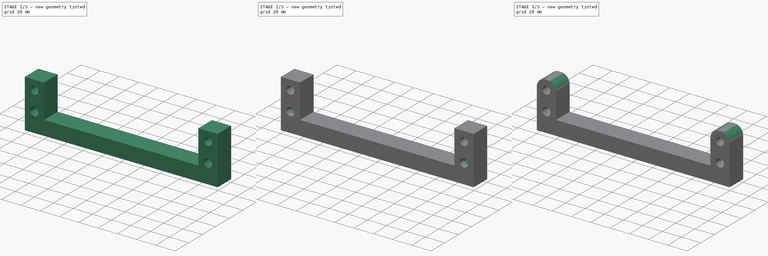
[diagram: build sequence overview — one tinted view per stage of 3, left to right]
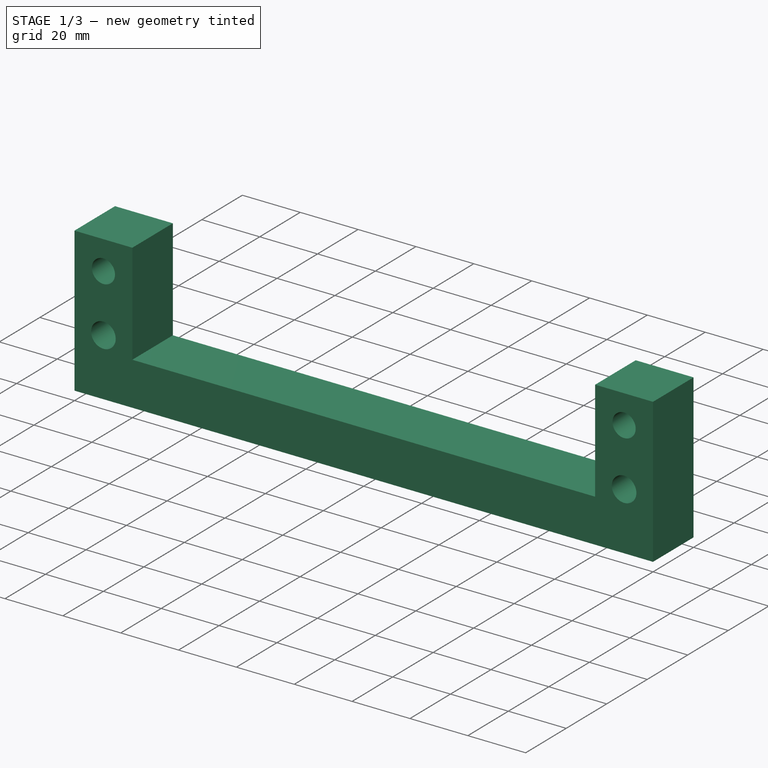
[diagram: stage 1 of 3 — iso view after this stage's code; geometry added in this stage tinted green]
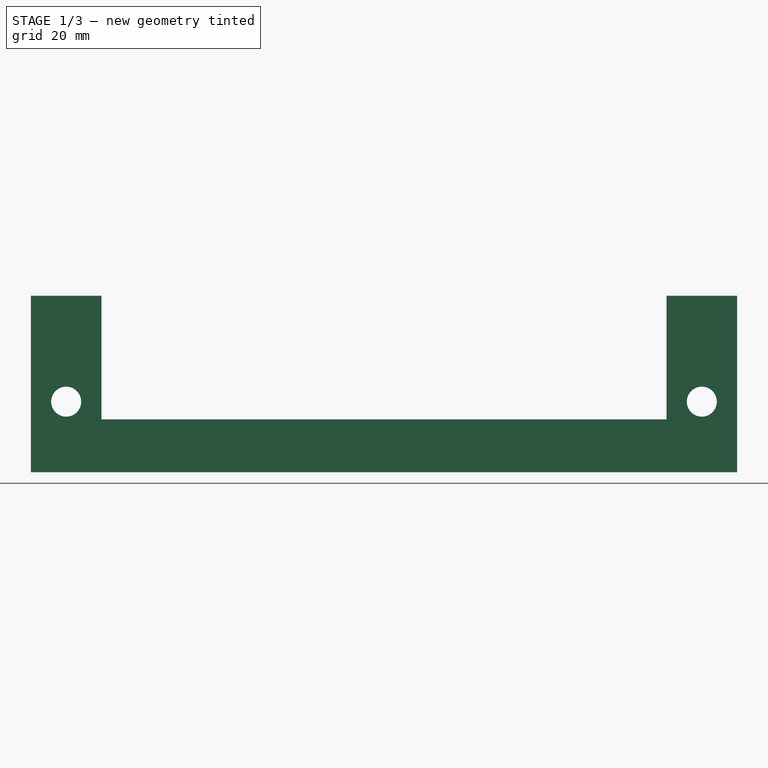
[diagram: stage 1 of 3 — front view after this stage's code; geometry added in this stage tinted green]
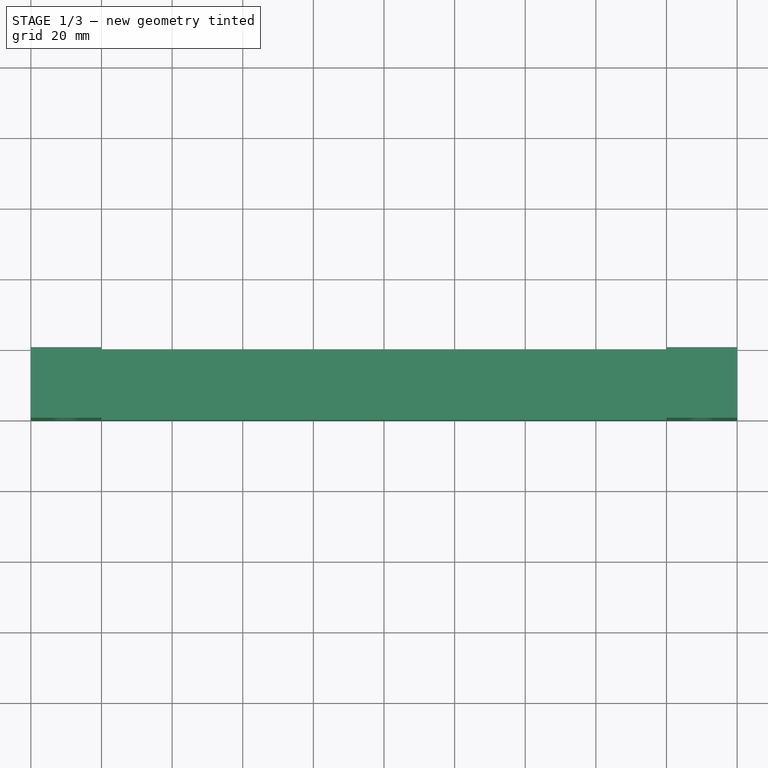
[diagram: stage 1 of 3 — top view after this stage's code; geometry added in this stage tinted green]
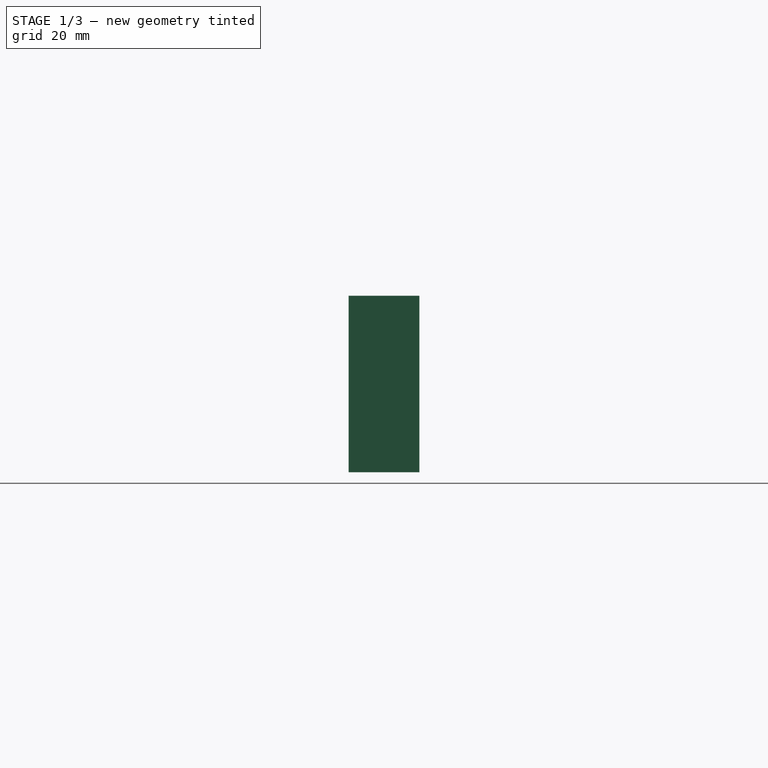
[diagram: stage 1 of 3 — right view after this stage's code; geometry added in this stage tinted green]
FCSTD DOCUMENT  (FreeCAD 2023.521R14555 (Git shallow))
Label: Y_Front_Base
License: All rights reserved
objects: Part::SubShapeBinder×6, PartDesign::CoordinateSystem×5, Sketcher::SketchObject×4, PartDesign::Pocket×3, PartDesign::Pad×1, PartDesign::Fillet×1, PartDesign::Body×1, App::Part×1
note: 35 computed .brp shape members not serialized (recipe doc carries the construction recipe); baked Part::Feature solids carry a one-line shape summary decoded from their .brp

FEATURE [Sketcher::SketchObject] Sketch
  ArcFitTolerance = 1e-06
  AttachmentSupport = -> [XZ_Plane]
  ExternalBSplineMaxDegree = 5
  ExternalBSplineTolerance = 0.0001
  FullyConstrained = true
  InternalTolerance = 1e-06
  InvalidShape = false
  MakeInternals = false
  MapMode = 5
  Placement = pos=(0,0,0) rot=(1,0,0;1.5708rad)
  Support = -> [XZ_Plane]
  TreeRank = 11
  ValidateShape = false
  sketch-geometry (12):
    g0: Circle CenterX=-90 CenterY=20 CenterZ=0 NormalX=0 NormalY=0 NormalZ=1 AngleXU=0 Radius=4.25
    g1: Circle CenterX=90 CenterY=20 CenterZ=0 NormalX=0 NormalY=0 NormalZ=1 AngleXU=0 Radius=4.25
    g2: LineSegment StartX=-100 StartY=0 StartZ=0 EndX=-100 EndY=50 EndZ=0
    g3: LineSegment StartX=100 StartY=50 StartZ=0 EndX=100 EndY=0 EndZ=0
    g4: LineSegment StartX=100 StartY=0 StartZ=0 EndX=-100 EndY=0 EndZ=0
    g5: GeomPoint [constr] X=0 Y=25 Z=0
    g6: LineSegment StartX=-100 StartY=50 StartZ=0 EndX=-80 EndY=50 EndZ=0
    g7: LineSegment StartX=-80 StartY=50 StartZ=0 EndX=-80 EndY=15 EndZ=0
    g8: LineSegment StartX=-80 StartY=15 StartZ=0 EndX=80 EndY=15 EndZ=0
    g9: LineSegment StartX=80 StartY=15 StartZ=0 EndX=80 EndY=50 EndZ=0
    g10: LineSegment StartX=80 StartY=50 StartZ=0 EndX=100 EndY=50 EndZ=0
    g11: GeomPoint [constr] X=-90 Y=50 Z=0
  constraints (30):
    c: Coincident(g3,g4)
    c: Coincident(g4,g2)
    c: Horizontal(g4)
    c: Vertical(g2)
    c: Vertical(g3)
    c: Symmetric(g3,g2,g5)
    c: Symmetric(g1,g0,g-2)
    c: PointOnObject(g-1,g4)
    c: Vertical(g5,g-1)
    c: DistanceX(g0,g1) = 180
    c: DistanceX(g4,g4) = 200
    c: DistanceY(g-1,g0) = 20
    c: DistanceY(g2,g2) = 50
    c: Equal(g0,g1)
    c: Diameter(g0) = 8.5
    c: Coincident(g6,g2)
    c: Horizontal(g6)
    c: Vertical(g7)
    c: Coincident(g8,g7)
    c: Coincident(g9,g8)
    c: Vertical(g9)
    c: Coincident(g10,g9)
    c: Coincident(g10,g3)
    c: Horizontal(g10)
    c: Horizontal(g9,g6)
    c: Coincident(g6,g7)
    c: Symmetric(g7,g8,g-2)
    c: Symmetric(g2,g6,g11)
    c: Vertical(g11,g0)
    c: DistanceY(g2,g7) = 15
FEATURE [PartDesign::Pad] Pad
  AddSubType = 0
  AlongSketchNormal = false
  AutoTaperInnerAngle = true
  CheckUpToFaceLimits = true
  ClaimChildren = false
  Direction = (0,-1,2e-16)
  Fit = 0
  FitJoin = 0
  InnerFit = 0
  InnerFitJoin = 0
  InvalidShape = false
  Length = 20
  Length2 = 10
  Linearize = true
  NewSolid = false
  Profile = -> Sketch
  ReferenceAxis = -> Sketch [N_Axis]
  Suppress = false
  TaperInnerAngle = 0
  TaperInnerAngleRev = 0
  TreeRank = 12
  Type = 0
  ValidateShape = true
  _ProfileBasedVersion = 1
FEATURE [Sketcher::SketchObject] Sketch001
  ArcFitTolerance = 1e-06
  AttachmentSupport = -> [Pad]
  ExternalBSplineMaxDegree = 5
  ExternalBSplineTolerance = 0.0001
  ExternalGeometry = -> [Pad]
  FullyConstrained = true
  InternalTolerance = 1e-06
  InvalidShape = false
  MakeInternals = false
  MapMode = 5
  Placement = pos=(0,-20,4.4e-15) rot=(1,0,0;1.5708rad)
  Support = -> [Pad]
  TreeRank = 13
  ValidateShape = false
  sketch-geometry (2):
    g0: Circle CenterX=-90 CenterY=40 CenterZ=0 NormalX=0 NormalY=0 NormalZ=1 AngleXU=0 Radius=4
    g1: Circle CenterX=90 CenterY=40 CenterZ=0 NormalX=0 NormalY=0 NormalZ=1 AngleXU=0 Radius=4
  constraints (5):
    c: Equal(g1,g0)
    c: Vertical(g0,g-3)
    c: Diameter(g0) = 8
    c: Symmetric(g0,g1,g-2)
    c: DistanceY(g-1,g0) = 40
FEATURE [PartDesign::Pocket] Pocket
  AddSubType = 1
  AlongSketchNormal = false
  AutoTaperInnerAngle = true
  BaseFeature = -> Pad
  CheckUpToFaceLimits = true
  ClaimChildren = false
  Direction = (0,1,-2e-16)
  Fit = 0
  FitJoin = 0
  InnerFit = 0
  InnerFitJoin = 0
  InvalidShape = false
  Length = 0
  Length2 = 10
  Linearize = true
  NewSolid = false
  Offset = 5
  Profile = -> Sketch001
  ReferenceAxis = -> Sketch001 [N_Axis]
  Suppress = false
  TaperInnerAngle = 0
  TaperInnerAngleRev = 0
  TreeRank = 14
  Type = 3
  UpToFace = -> Pad [Face11]
  ValidateShape = true
  _ProfileBasedVersion = 1
  _Version = 1
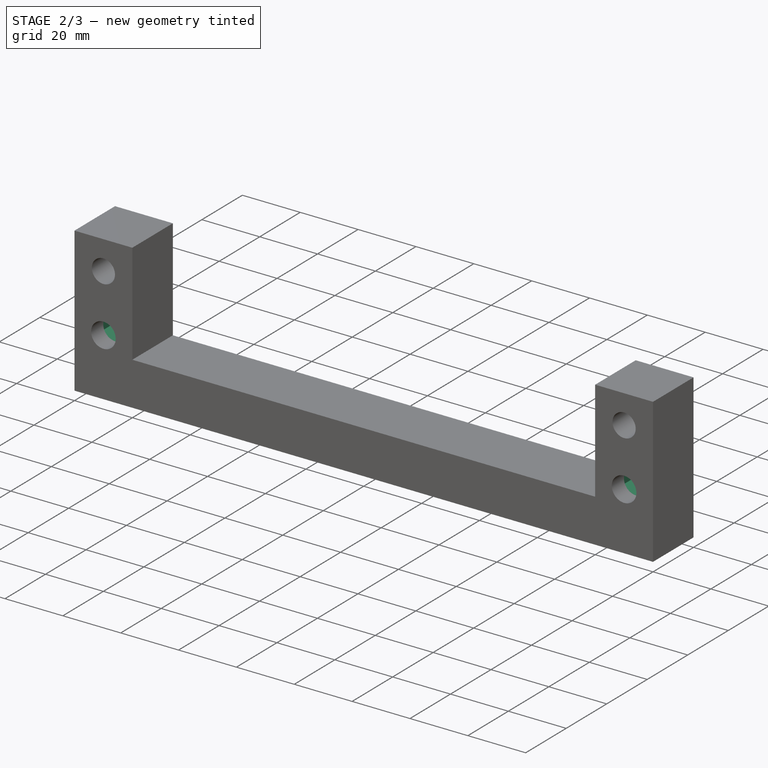
[diagram: stage 2 of 3 — iso view after this stage's code; geometry added in this stage tinted green]
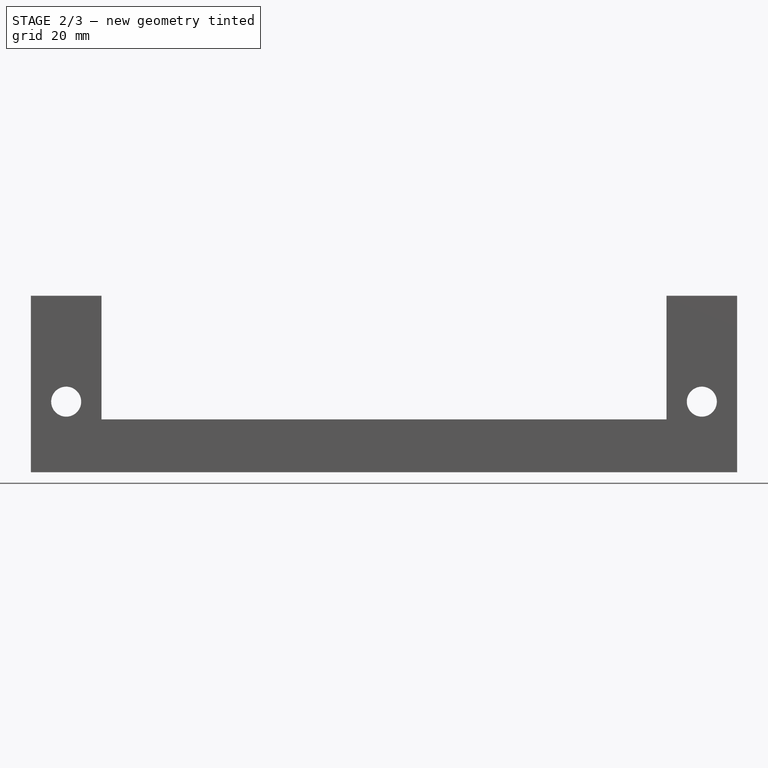
[diagram: stage 2 of 3 — front view after this stage's code; geometry added in this stage tinted green]
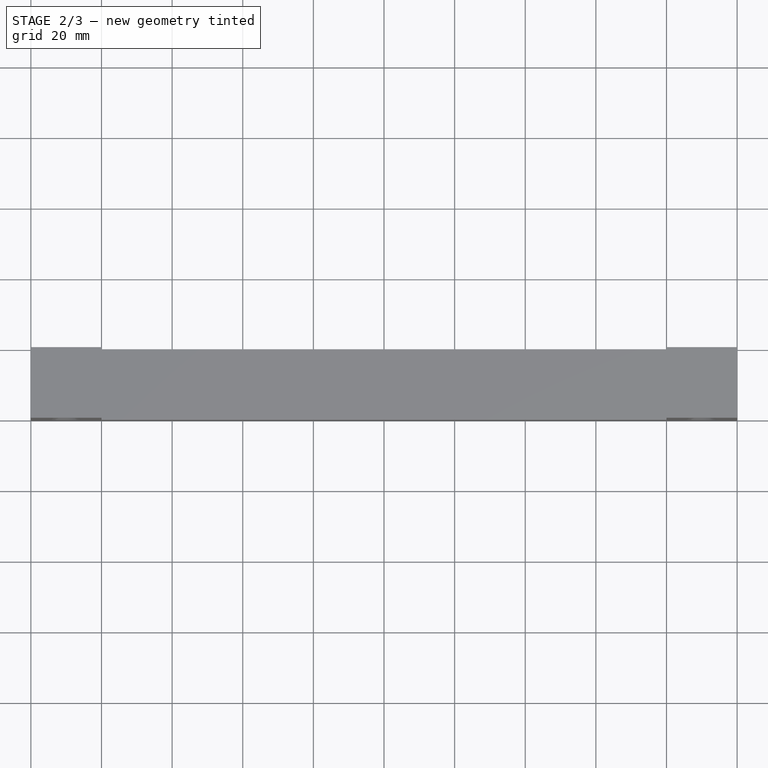
[diagram: stage 2 of 3 — top view after this stage's code; geometry added in this stage tinted green]
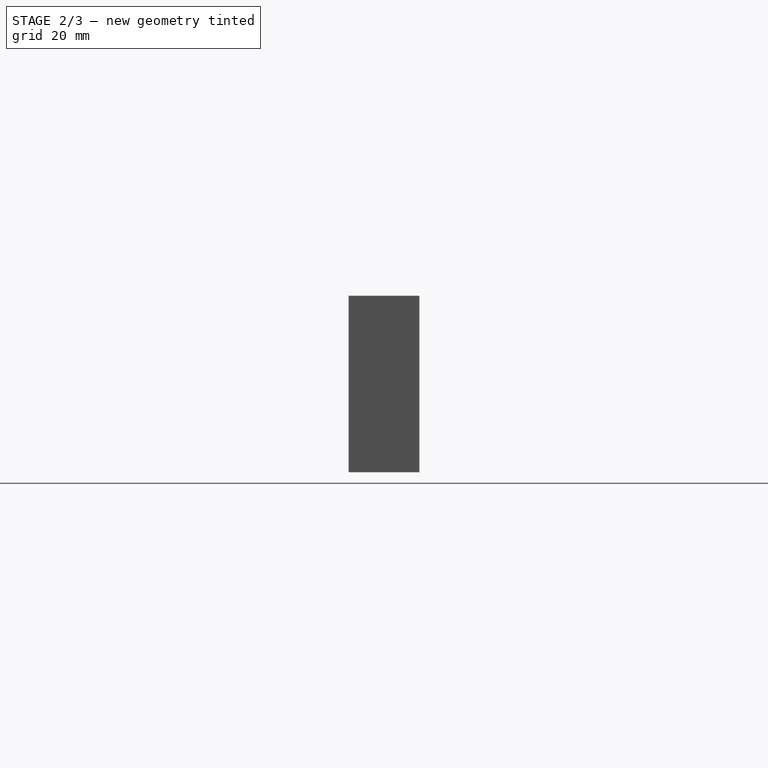
[diagram: stage 2 of 3 — right view after this stage's code; geometry added in this stage tinted green]
FEATURE [Sketcher::SketchObject] Sketch002
  ArcFitTolerance = 1e-06
  AttachmentSupport = -> [Pocket]
  ExternalBSplineMaxDegree = 5
  ExternalBSplineTolerance = 0.0001
  ExternalGeometry = -> [Pocket]
  FullyConstrained = true
  InternalTolerance = 1e-06
  InvalidShape = false
  MakeInternals = false
  MapMode = 5
  Placement = pos=(0,0,0) rot=(0,0.707107,0.707107;3.14159rad)
  Support = -> [Pocket]
  TreeRank = 15
  ValidateShape = false
  sketch-geometry (14):
    g0: LineSegment StartX=-83 StartY=24.0415 StartZ=0 EndX=-90 EndY=28.0829 EndZ=0
    g1: LineSegment StartX=-90 StartY=28.0829 StartZ=0 EndX=-97 EndY=24.0415 EndZ=0
    g2: LineSegment StartX=-97 StartY=24.0415 StartZ=0 EndX=-97 EndY=15.9585 EndZ=0
    g3: LineSegment StartX=-97 StartY=15.9585 StartZ=0 EndX=-90 EndY=11.9171 EndZ=0
    g4: LineSegment StartX=-90 StartY=11.9171 StartZ=0 EndX=-83 EndY=15.9585 EndZ=0
    g5: LineSegment StartX=-83 StartY=15.9585 StartZ=0 EndX=-83 EndY=24.0415 EndZ=0
    g6: Circle [constr] CenterX=-90 CenterY=20 CenterZ=0 NormalX=0 NormalY=0 NormalZ=1 AngleXU=0 Radius=8.0829
    g7: LineSegment StartX=83 StartY=24.0415 StartZ=0 EndX=83 EndY=15.9585 EndZ=0
    g8: LineSegment StartX=83 StartY=15.9585 StartZ=0 EndX=90 EndY=11.9171 EndZ=0
    g9: LineSegment StartX=90 StartY=11.9171 StartZ=0 EndX=97 EndY=15.9585 EndZ=0
    g10: LineSegment StartX=97 StartY=15.9585 StartZ=0 EndX=97 EndY=24.0415 EndZ=0
    g11: LineSegment StartX=97 StartY=24.0415 StartZ=0 EndX=90 EndY=28.0829 EndZ=0
    g12: LineSegment StartX=90 StartY=28.0829 StartZ=0 EndX=83 EndY=24.0415 EndZ=0
    g13: Circle [constr] CenterX=90 CenterY=20 CenterZ=0 NormalX=0 NormalY=0 NormalZ=1 AngleXU=0 Radius=8.0829
  constraints (32):
    c: Coincident(g0,g1)
    c: Coincident(g1,g2)
    c: Coincident(g2,g3)
    c: Coincident(g3,g4)
    c: Coincident(g4,g5)
    c: Coincident(g5,g0)
    c: Equal(g0, g1-g5) x5
    c: PointOnObject(g0,g6)
    c: PointOnObject(g1,g6)
    c: PointOnObject(g2,g6)
    c: PointOnObject(g3,g6)
    c: PointOnObject(g4,g6)
    c: PointOnObject(g5,g6)
    c: Coincident(g6,g-3)
    c: Coincident(g7,g8)
    c: Coincident(g8,g9)
    c: Coincident(g9,g10)
    c: Coincident(g10,g11)
    c: Coincident(g11,g12)
    c: Coincident(g12,g7)
    c: Equal(g7, g8-g12) x5
    c: PointOnObject(g7,g13)
    c: PointOnObject(g8,g13)
    c: PointOnObject(g9,g13)
    c: PointOnObject(g10,g13)
    c: PointOnObject(g11,g13)
    c: PointOnObject(g12,g13)
    c: Symmetric(g-3,g13,g-2)
    c: Equal(g5,g10)
    c: DistanceX(g1,g0) = 14
    c: Vertical(g5)
    c: Vertical(g10)
FEATURE [PartDesign::Pocket] Pocket001
  AddSubType = 1
  AlongSketchNormal = false
  AutoTaperInnerAngle = true
  BaseFeature = -> Pocket
  CheckUpToFaceLimits = true
  ClaimChildren = false
  Direction = (0,-1,2e-16)
  Fit = 0
  FitJoin = 0
  InnerFit = 0
  InnerFitJoin = 0
  InvalidShape = false
  Length = 14
  Length2 = 10
  Linearize = true
  NewSolid = false
  Profile = -> Sketch002
  ReferenceAxis = -> Sketch002 [N_Axis]
  Suppress = false
  TaperInnerAngle = 0
  TaperInnerAngleRev = 0
  TreeRank = 16
  Type = 0
  ValidateShape = true
  _ProfileBasedVersion = 1
  _Version = 1
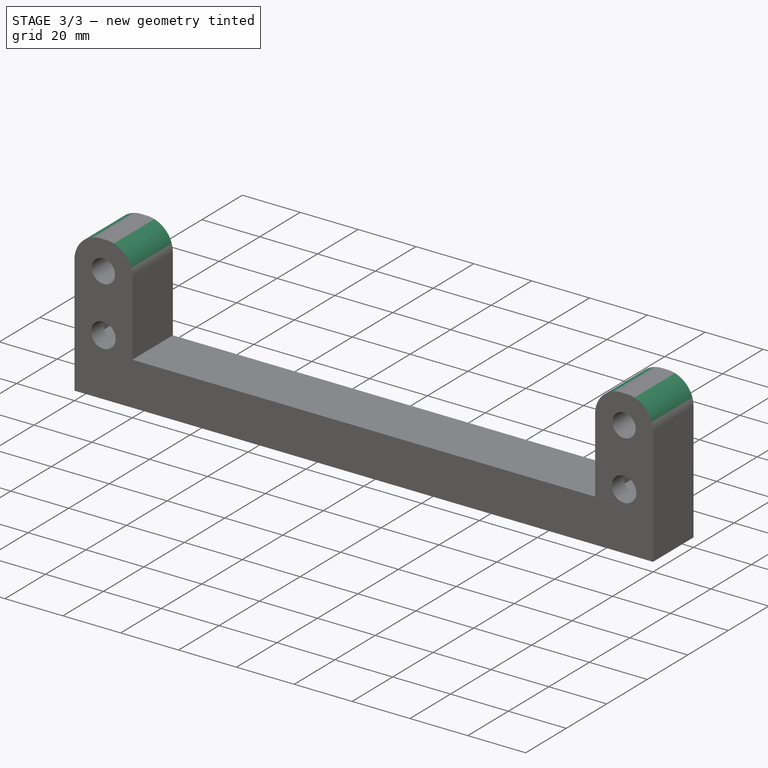
[diagram: stage 3 of 3 — iso view after this stage's code; geometry added in this stage tinted green]
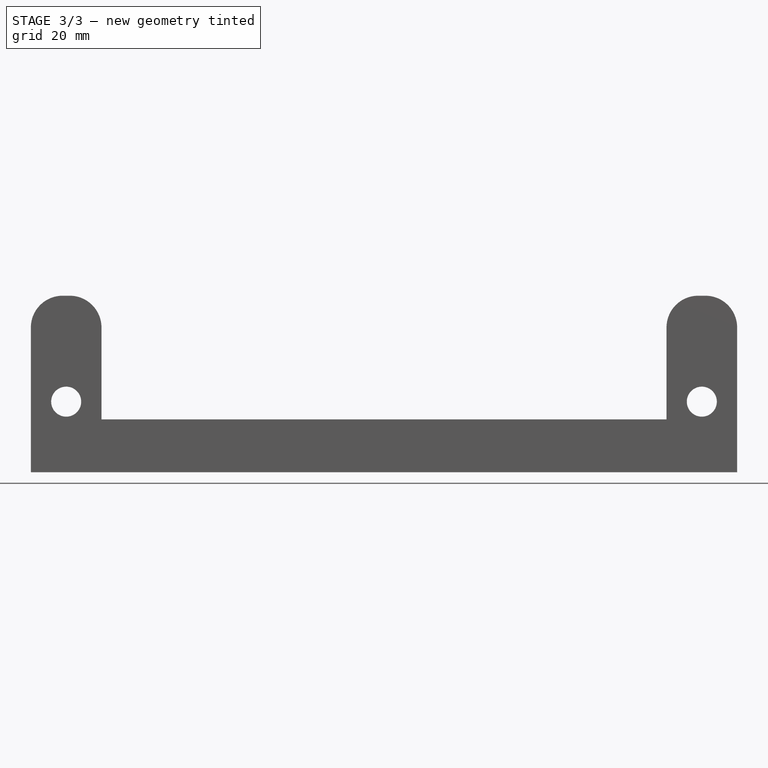
[diagram: stage 3 of 3 — front view after this stage's code; geometry added in this stage tinted green]
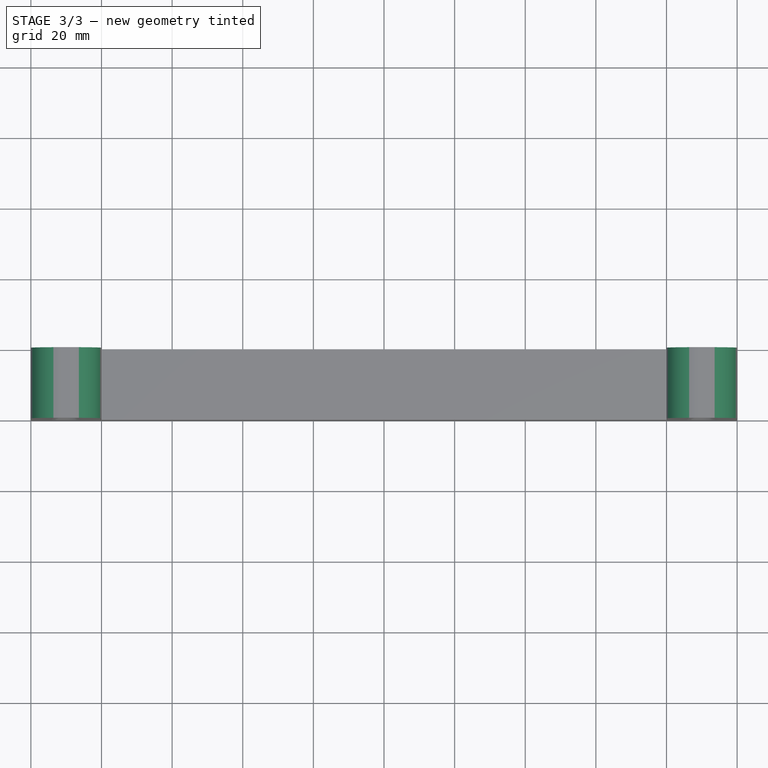
[diagram: stage 3 of 3 — top view after this stage's code; geometry added in this stage tinted green]
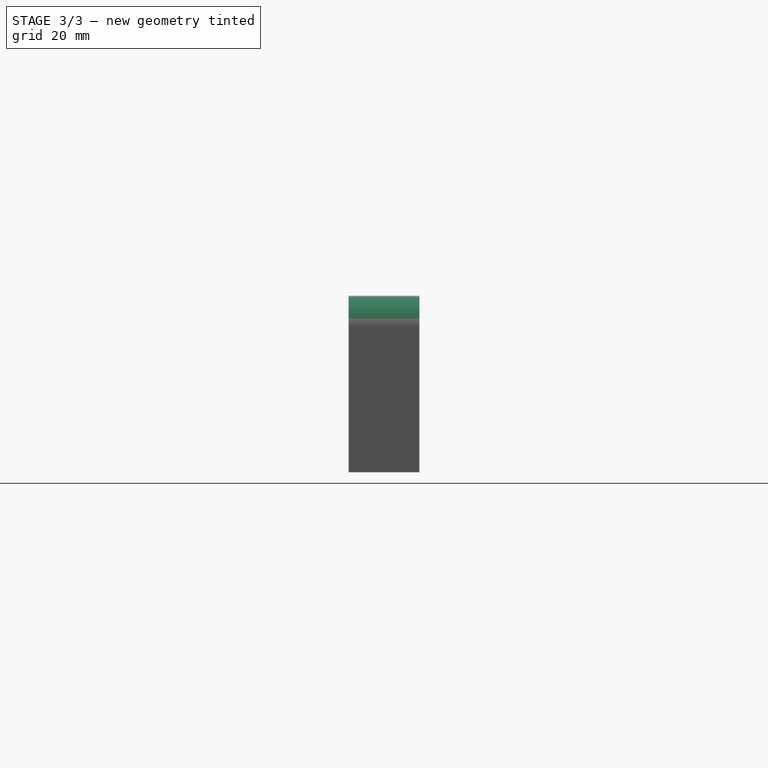
[diagram: stage 3 of 3 — right view after this stage's code; geometry added in this stage tinted green]
FEATURE [Sketcher::SketchObject] Sketch003
  ArcFitTolerance = 1e-06
  AttachmentSupport = -> [Pocket001]
  ExternalBSplineMaxDegree = 5
  ExternalBSplineTolerance = 0.0001
  FullyConstrained = true
  InternalTolerance = 1e-06
  InvalidShape = false
  MakeInternals = false
  MapMode = 5
  Placement = pos=(0,0,0) rot=(0,0.707107,0.707107;3.14159rad)
  Support = -> [Pocket001]
  TreeRank = 17
  ValidateShape = false
  sketch-geometry (3):
    g0: Circle CenterX=0 CenterY=8 CenterZ=0 NormalX=0 NormalY=0 NormalZ=1 AngleXU=0 Radius=2.65
    g1: Circle CenterX=20 CenterY=8 CenterZ=0 NormalX=0 NormalY=0 NormalZ=1 AngleXU=0 Radius=2.65
    g2: Circle CenterX=-20 CenterY=8 CenterZ=0 NormalX=0 NormalY=0 NormalZ=1 AngleXU=0 Radius=2.65
  constraints (8):
    c: Symmetric(g1,g2,g0)
    c: Vertical(g0,g-1)
    c: Horizontal(g1,g0)
    c: DistanceX(g0,g1) = 20
    c: Diameter(g1) = 5.3
    c: Equal(g0,g2)
    c: Equal(g0,g1)
    c: DistanceY(g-1,g0) = 8
FEATURE [PartDesign::Pocket] Pocket002
  AddSubType = 1
  AlongSketchNormal = false
  AutoTaperInnerAngle = true
  BaseFeature = -> Pocket001
  CheckUpToFaceLimits = true
  ClaimChildren = false
  Direction = (0,-1,2e-16)
  Fit = 0
  FitJoin = 0
  InnerFit = 0
  InnerFitJoin = 0
  InvalidShape = false
  Length = 13
  Length2 = 10
  Linearize = true
  NewSolid = false
  Profile = -> Sketch003
  ReferenceAxis = -> Sketch003 [N_Axis]
  Suppress = false
  TaperInnerAngle = 0
  TaperInnerAngleRev = 0
  TreeRank = 18
  Type = 0
  ValidateShape = true
  _ProfileBasedVersion = 1
  _Version = 1
FEATURE [PartDesign::Fillet] Fillet
  AddSubType = 0
  Base = -> Pocket002 [Edge2,Edge8,Edge42,Edge40]
  BaseFeature = -> Pocket002
  InvalidShape = false
  NewSolid = false
  Radius = 9
  SupportTransform = false
  Suppress = false
  TreeRank = 19
  UseAllEdges = false
  ValidateShape = true
FEATURE [PartDesign::Body] Body  label="Front_Base"
  AutoGroupSolids = false
  ClaimAllChildren = false
  ExportMode = 0
  Group = -> [Sketch,Pad,Sketch001,Pocket,Sketch002,Pocket001,Sketch003,Pocket002,Fillet]
  InvalidShape = false
  Origin = -> Origin
  Tip = -> Fillet
  TreeRank = 10
  ValidateShape = false
  _ExportChildren = -> [Pad,Pocket,Pocket001,Pocket002,Fillet]
  _GroupVersion = 1
FEATURE [PartDesign::CoordinateSystem] Local_CS  label="Rod0"
  AttacherType = Attacher::AttachEngine3D
  AttachmentSupport = -> [Fillet]
  InvalidShape = false
  MapMode = 11
  Placement = pos=(-90,-5,40) rot=(0.57735,-0.57735,0.57735;2.0944rad)
  Support = -> [Fillet]
  TreeRank = 20
  ValidateShape = false
FEATURE [PartDesign::CoordinateSystem] Local_CS001  label="Rod1"
  AttacherType = Attacher::AttachEngine3D
  AttachmentSupport = -> [Fillet]
  InvalidShape = false
  MapMode = 11
  Placement = pos=(90,-5,40) rot=(0.57735,-0.57735,0.57735;2.0944rad)
  Support = -> [Fillet]
  TreeRank = 21
  ValidateShape = false
FEATURE [PartDesign::CoordinateSystem] Local_CS002  label="TRod0"
  AttacherType = Attacher::AttachEngine3D
  AttachmentSupport = -> [Fillet]
  InvalidShape = false
  MapMode = 45
  Placement = pos=(90,-14,20) rot=(0,0.707107,0.707107;3.14159rad)
  Support = -> [Fillet]
  TreeRank = 22
  ValidateShape = false
FEATURE [PartDesign::CoordinateSystem] Local_CS003  label="TRod1"
  AttacherType = Attacher::AttachEngine3D
  AttachmentSupport = -> [Fillet]
  InvalidShape = false
  MapMode = 45
  Placement = pos=(-90,-14,20) rot=(0,0.707107,0.707107;3.14159rad)
  Support = -> [Fillet]
  TreeRank = 23
  ValidateShape = false
FEATURE [PartDesign::CoordinateSystem] LCS_0
  AttacherType = Attacher::AttachEngine3D
  AttachmentSupport = -> [X_Axis001]
  InvalidShape = false
  MapMode = 2
  Support = -> [X_Axis001]
  TreeRank = 26
  ValidateShape = false
FEATURE [Part::SubShapeBinder] Binder  label="Binder(Fillet)"
  BindCopyOnChange = 0
  BindMode = 0
  ClaimChildren = false
  Context = -> Front_base [Binder.]
  EdgeTolerance = 1e-06
  FillStyle = 0
  Fuse = false
  InvalidShape = false
  MakeFace = true
  MergeEdges = true
  OffsetFill = false
  OffsetIntersection = false
  OffsetJoinType = 0
  OffsetOpenResult = false
  Outline = false
  PartialLoad = false
  Relative = true
  SplitEdges = false
  Support = -> [Body[Fillet.]]
  TightBound = false
  TreeRank = 35
  ValidateShape = false
  _Version = 8
FEATURE [Part::SubShapeBinder] Binder001  label="Binder001(Fillet)"
  BindCopyOnChange = 0
  BindMode = 0
  ClaimChildren = false
  Context = -> Front_base [Binder001.]
  EdgeTolerance = 1e-06
  FillStyle = 0
  Fuse = false
  InvalidShape = false
  MakeFace = true
  MergeEdges = true
  OffsetFill = false
  OffsetIntersection = false
  OffsetJoinType = 0
  OffsetOpenResult = false
  Outline = false
  PartialLoad = false
  Relative = true
  SplitEdges = false
  Support = -> [Body[Fillet.]]
  TightBound = false
  TreeRank = 36
  ValidateShape = false
  _Version = 8
FEATURE [Part::SubShapeBinder] Binder002  label="Binder002(Fillet)"
  BindCopyOnChange = 0
  BindMode = 0
  ClaimChildren = false
  Context = -> Front_base [Binder002.]
  EdgeTolerance = 1e-06
  FillStyle = 0
  Fuse = false
  InvalidShape = false
  MakeFace = true
  MergeEdges = true
  OffsetFill = false
  OffsetIntersection = false
  OffsetJoinType = 0
  OffsetOpenResult = false
  Outline = false
  PartialLoad = false
  Relative = true
  SplitEdges = false
  Support = -> [Body[Fillet.]]
  TightBound = false
  TreeRank = 37
  ValidateShape = false
  _Version = 8
FEATURE [Part::SubShapeBinder] Binder003  label="Binder003(Fillet)"
  BindCopyOnChange = 0
  BindMode = 0
  ClaimChildren = false
  Context = -> Front_base [Binder003.]
  EdgeTolerance = 1e-06
  FillStyle = 0
  Fuse = false
  InvalidShape = false
  MakeFace = true
  MergeEdges = true
  OffsetFill = false
  OffsetIntersection = false
  OffsetJoinType = 0
  OffsetOpenResult = false
  Outline = false
  PartialLoad = false
  Relative = true
  SplitEdges = false
  Support = -> [Body[Fillet.]]
  TightBound = false
  TreeRank = 38
  ValidateShape = false
  _Version = 8
FEATURE [Part::SubShapeBinder] Binder004  label="Binder004(Fillet)"
  BindCopyOnChange = 0
  BindMode = 0
  ClaimChildren = false
  Context = -> Front_base [Binder004.]
  EdgeTolerance = 1e-06
  FillStyle = 0
  Fuse = false
  InvalidShape = false
  MakeFace = true
  MergeEdges = true
  OffsetFill = false
  OffsetIntersection = false
  OffsetJoinType = 0
  OffsetOpenResult = false
  Outline = false
  PartialLoad = false
  Relative = true
  SplitEdges = false
  Support = -> [Body[Fillet.]]
  TightBound = false
  TreeRank = 39
  ValidateShape = false
  _Version = 8
FEATURE [Part::SubShapeBinder] Binder005  label="Binder005(Fillet)"
  BindCopyOnChange = 0
  BindMode = 0
  ClaimChildren = false
  Context = -> Front_base [Binder005.]
  EdgeTolerance = 1e-06
  FillStyle = 0
  Fuse = false
  InvalidShape = false
  MakeFace = true
  MergeEdges = true
  OffsetFill = false
  OffsetIntersection = false
  OffsetJoinType = 0
  OffsetOpenResult = false
  Outline = false
  PartialLoad = false
  Relative = true
  SplitEdges = false
  Support = -> [Body[Fillet.]]
  TightBound = false
  TreeRank = 40
  ValidateShape = false
  _Version = 8
FEATURE [App::Part] Front_base
  ClaimAllChildren = false
  ExportMode = 1
  Group = -> [LCS_0,Body,Local_CS,Local_CS001,Local_CS002,Local_CS003,Binder,Binder001,Binder002,Binder003,Binder004,Binder005]
  Origin = -> Origin001
  TreeRank = 34
  _ExportChildren = -> [LCS_0,Body,Local_CS,Local_CS001,Local_CS002,Local_CS003,Binder,Binder001,Binder002,Binder003,Binder004,Binder005]
  _GroupVersion = 1
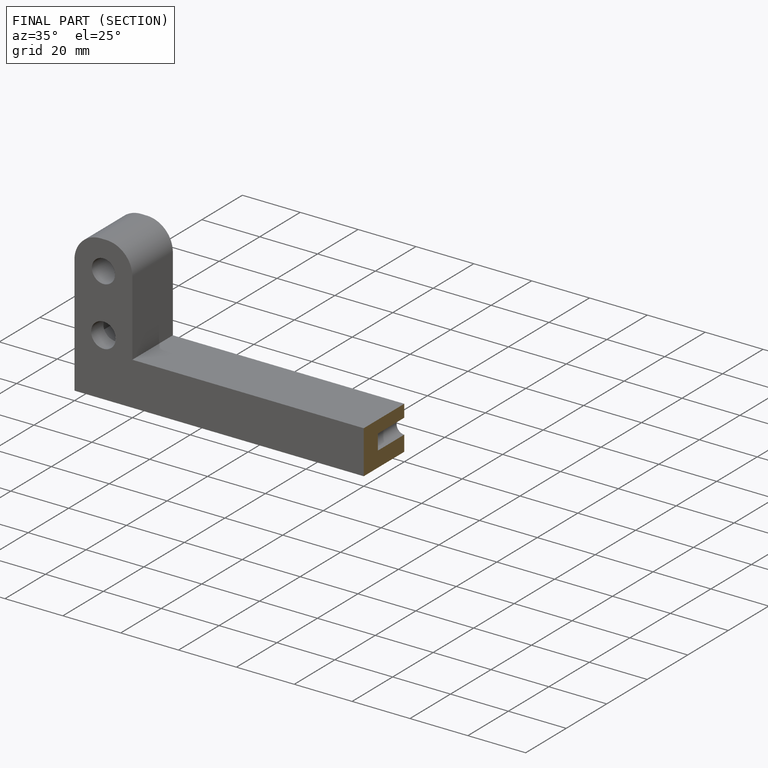
[diagram: finished part — half-section view (interior)]
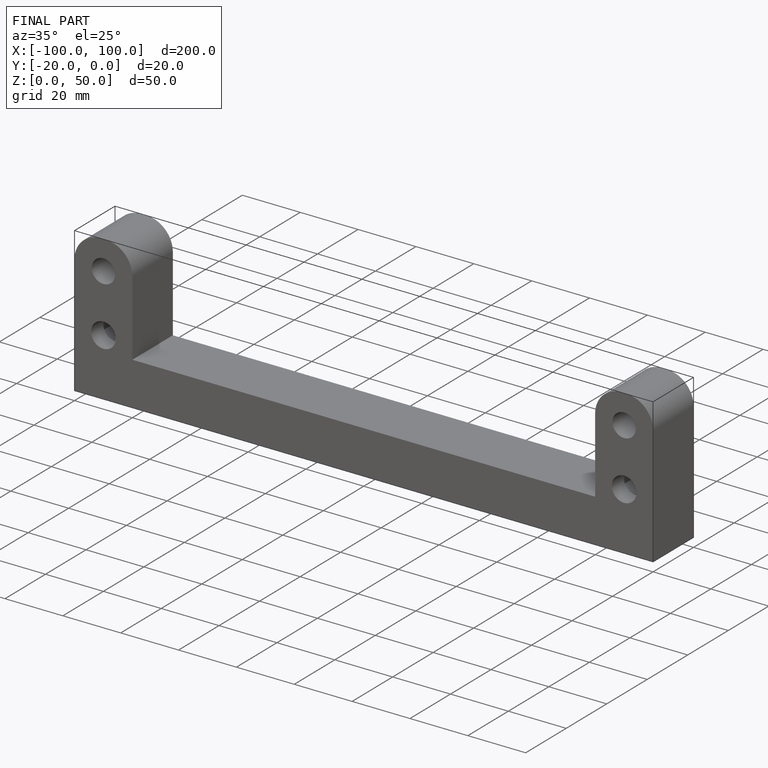
[diagram: finished part — iso view with bounding-box wireframe]
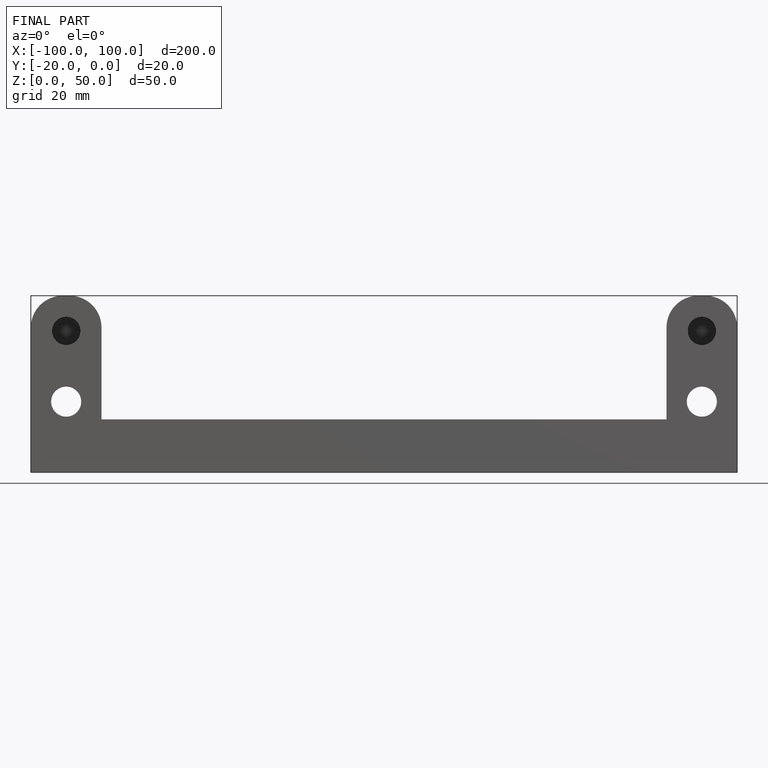
[diagram: finished part — front view with bounding-box wireframe]
